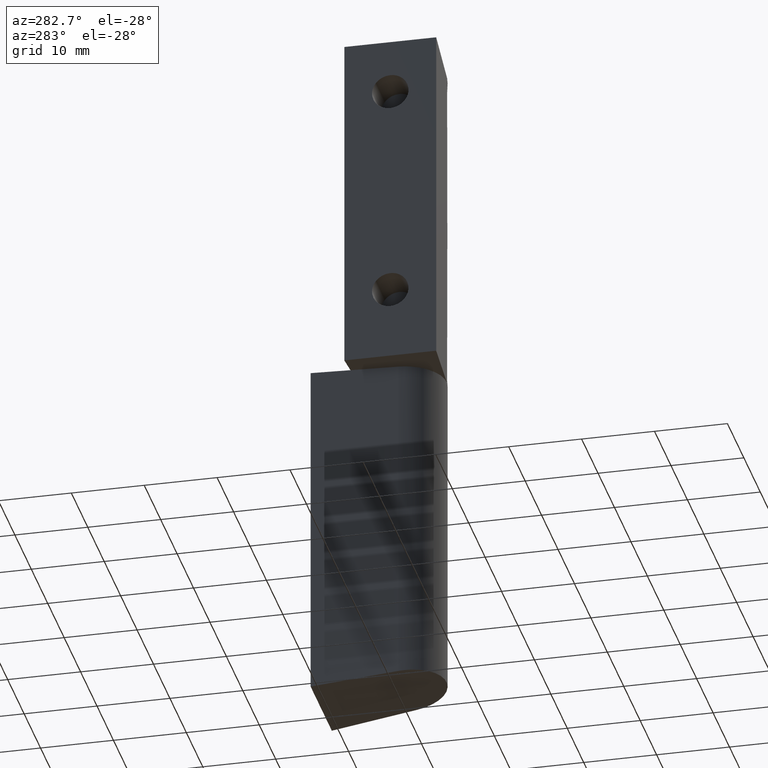
[diagram: clean part render]
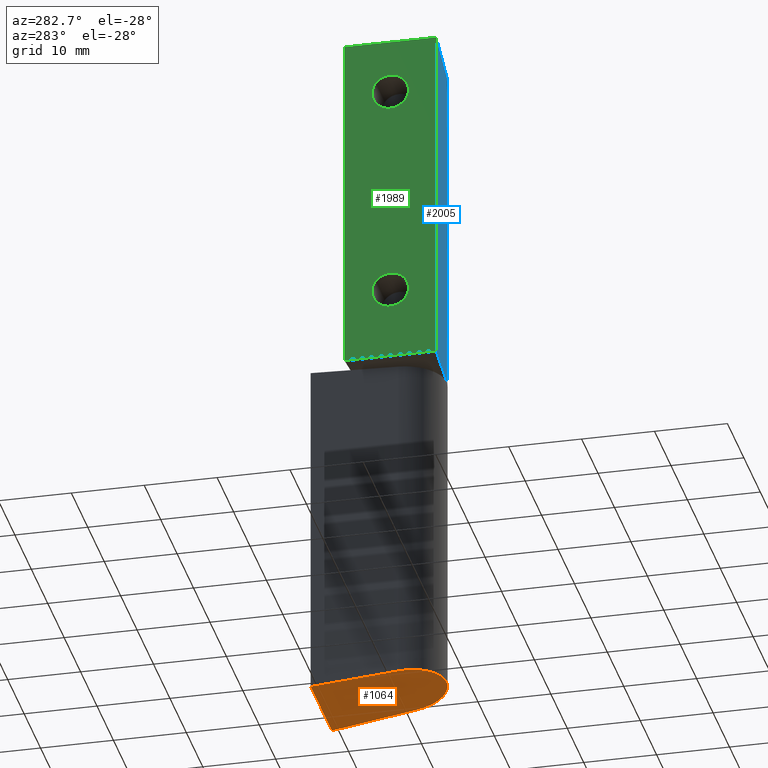
[diagram: same view with three faces highlighted in distinct colors, each labeled with its STEP entity id]
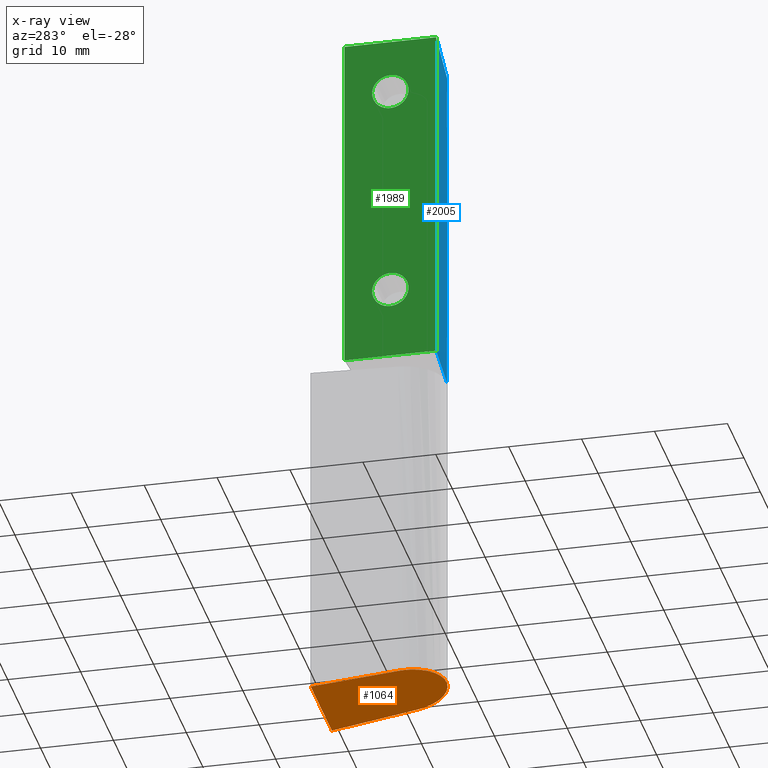
[diagram: x-ray of the same camera — body ghosted, the three highlighted faces saturated]
A machine part, auxiliary view with three faces highlighted in distinct colors.
The next image is the same camera in x-ray (body ghosted, the three faces saturated) — at least one of them is partly hidden behind the body in this view.
Their STEP definitions:

[orange] entity #1064 — the highlighted face is a freeform B-spline surface patch.
#1019=CARTESIAN_POINT('',(-7.094355311961397,12.359141038074650,-0.099900057192342));
#1020=CARTESIAN_POINT('',(-7.094355311961397,-6.559140762589450,2.099900152187726));
#1021=CARTESIAN_POINT('',(7.094355657966185,12.359141038074650,-0.099900057192342));
#1022=CARTESIAN_POINT('',(7.094355657966185,-6.559140762589450,2.099900152187726));
#1023=B_SPLINE_SURFACE_WITH_KNOTS('',1,1,((#1019,#1021),(#1020,#1022)),.UNSPECIFIED.,.F.,.F.,.U.,(2,2),(2,2),(0.0,19.045747747214520),(0.0,14.188710969927580),.UNSPECIFIED.);
#1024=CARTESIAN_POINT('',(6.450000306358669,11.500000546220720,0.0));
#1025=VERTEX_POINT('',#1024);
#1026=CARTESIAN_POINT('',(-6.450000306358859,11.500000546220599,0.0));
#1027=VERTEX_POINT('',#1026);
#1028=CARTESIAN_POINT('',(6.450000306358669,11.500000546220720,0.0));
#1029=CARTESIAN_POINT('',(-6.450000306358859,11.500000546220599,0.0));
#1030=QUASI_UNIFORM_CURVE('',1,(#1028,#1029),.UNSPECIFIED.,.F.,.U.);
#1031=EDGE_CURVE('',#1025,#1027,#1030,.T.);
#1032=ORIENTED_EDGE('',*,*,#1031,.F.);
#1033=CARTESIAN_POINT('',(5.688290843953990,-0.365171686983634,1.379671189907754));
#1034=VERTEX_POINT('',#1033);
#1035=CARTESIAN_POINT('',(5.688290843953990,-0.365171686983634,1.379671189907754));
#1036=CARTESIAN_POINT('',(6.450000306358669,11.500000546220720,0.0));
#1037=QUASI_UNIFORM_CURVE('',1,(#1035,#1036),.UNSPECIFIED.,.F.,.U.);
#1038=EDGE_CURVE('',#1034,#1025,#1037,.T.);
#1039=ORIENTED_EDGE('',*,*,#1038,.F.);
#1040=CARTESIAN_POINT('',(-5.688290843954590,-0.365171686983985,1.379671189907782));
#1041=VERTEX_POINT('',#1040);
#1042=CARTESIAN_POINT('',(5.688290843953990,-0.365171686983634,1.379671189907754));
#1043=CARTESIAN_POINT('',(5.345810403494418,-5.700000270738288,2.000000094995675));
#1044=CARTESIAN_POINT('',(-3.155577E-012,-5.700000270735608,2.000000094995364));
#1045=CARTESIAN_POINT('',(-5.345810403500728,-5.700000270732930,2.000000094995051));
#1046=CARTESIAN_POINT('',(-5.688290843954590,-0.365171686983985,1.379671189907782));
#1054=(BOUNDED_CURVE()B_SPLINE_CURVE(2,(#1042,#1043,#1044,#1045,#1046),.UNSPECIFIED.,.F.,.U.)B_SPLINE_CURVE_WITH_KNOTS((3,2,3),(0.0,0.500000000000000,1.0),.UNSPECIFIED.)CURVE()GEOMETRIC_REPRESENTATION_ITEM()RATIONAL_B_SPLINE_CURVE((1.0,0.729405650238358,1.0,0.729405650238358,1.0))REPRESENTATION_ITEM(''));
#1055=EDGE_CURVE('',#1034,#1041,#1054,.T.);
#1056=ORIENTED_EDGE('',*,*,#1055,.T.);
#1057=CARTESIAN_POINT('',(-6.450000306358859,11.500000546220599,0.0));
#1058=CARTESIAN_POINT('',(-5.688290843954590,-0.365171686983985,1.379671189907782));
#1059=QUASI_UNIFORM_CURVE('',1,(#1057,#1058),.UNSPECIFIED.,.F.,.U.);
#1060=EDGE_CURVE('',#1027,#1041,#1059,.T.);
#1061=ORIENTED_EDGE('',*,*,#1060,.F.);
#1062=EDGE_LOOP('',(#1032,#1039,#1056,#1061));
#1063=FACE_OUTER_BOUND('',#1062,.T.);
#1064=ADVANCED_FACE('',(#1063),#1023,.F.);

[blue] entity #2005 — the highlighted face is a freeform B-spline surface patch.
#1842=CARTESIAN_POINT('',(0.371515839193036,-5.687880015226591,93.724968285499799));
#1843=VERTEX_POINT('',#1842);
#1868=CARTESIAN_POINT('',(-9.000000427477248,-6.300000299233940,95.000004512257405));
#1869=VERTEX_POINT('',#1868);
#1875=CARTESIAN_POINT('',(0.371515839193036,-5.687880015226591,93.724968285499799));
#1876=CARTESIAN_POINT('',(-9.000000427477248,-6.300000299233940,95.000004512257405));
#1877=QUASI_UNIFORM_CURVE('',1,(#1875,#1876),.UNSPECIFIED.,.F.,.U.);
#1878=EDGE_CURVE('',#1843,#1869,#1877,.T.);
#1909=CARTESIAN_POINT('',(0.371515839193036,-5.687880015226591,47.500002256128802));
#1910=VERTEX_POINT('',#1909);
#1911=CARTESIAN_POINT('',(0.371515839193036,-5.687880015226591,47.500002256128802));
#1912=CARTESIAN_POINT('',(0.371515839193036,-5.687880015226591,93.724968285499799));
#1913=QUASI_UNIFORM_CURVE('',1,(#1911,#1912),.UNSPECIFIED.,.F.,.U.);
#1914=EDGE_CURVE('',#1910,#1843,#1913,.T.);
#1963=CARTESIAN_POINT('',(-9.000000427477300,-6.300000299233999,47.500002256128802));
#1964=VERTEX_POINT('',#1963);
#1970=CARTESIAN_POINT('',(-9.000000427477300,-6.300000299233999,47.500002256128802));
#1971=CARTESIAN_POINT('',(-9.000000427477248,-6.300000299233940,95.000004512257405));
#1972=QUASI_UNIFORM_CURVE('',1,(#1970,#1971),.UNSPECIFIED.,.F.,.U.);
#1973=EDGE_CURVE('',#1964,#1869,#1972,.T.);
#1990=CARTESIAN_POINT('',(0.839623025067763,-5.657304610413728,45.127378403484123));
#1991=CARTESIAN_POINT('',(-9.468107194412603,-6.330575676682939,45.127378403484130));
#1992=CARTESIAN_POINT('',(0.839623025067763,-5.657304610413728,97.372634310465671));
#1993=CARTESIAN_POINT('',(-9.468107194412603,-6.330575676682939,97.372634310465671));
#1994=B_SPLINE_SURFACE_WITH_KNOTS('',1,1,((#1990,#1992),(#1991,#1993)),.UNSPECIFIED.,.F.,.F.,.U.,(2,2),(2,2),(0.0,10.329694874790061),(0.0,52.245255906981548),.UNSPECIFIED.);
#1995=ORIENTED_EDGE('',*,*,#1914,.T.);
#1996=ORIENTED_EDGE('',*,*,#1878,.T.);
#1997=ORIENTED_EDGE('',*,*,#1973,.F.);
#1998=CARTESIAN_POINT('',(0.371515839193036,-5.687880015226591,47.500002256128802));
#1999=CARTESIAN_POINT('',(-9.000000427477300,-6.300000299233999,47.500002256128802));
#2000=QUASI_UNIFORM_CURVE('',1,(#1998,#1999),.UNSPECIFIED.,.F.,.U.);
#2001=EDGE_CURVE('',#1910,#1964,#2000,.T.);
#2002=ORIENTED_EDGE('',*,*,#2001,.F.);
#2003=EDGE_LOOP('',(#1995,#1996,#1997,#2002));
#2004=FACE_OUTER_BOUND('',#2003,.T.);
#2005=ADVANCED_FACE('',(#2004),#1994,.F.);

[green] entity #1989 — the highlighted face is a freeform B-spline surface patch.
#1470=CARTESIAN_POINT('',(-9.000000427477279,-2.482523933808150,87.204918555246650));
#1471=VERTEX_POINT('',#1470);
#1477=CARTESIAN_POINT('',(-9.000000427477279,0.0,90.000004274770532));
#1478=VERTEX_POINT('',#1477);
#1479=CARTESIAN_POINT('',(-9.000000427477279,-2.482523933808150,87.204918555246650));
#1480=CARTESIAN_POINT('',(-9.000000427477279,-2.500000118743626,87.351943849740792));
#1481=CARTESIAN_POINT('',(-9.000000427477279,-2.500000118743625,87.500004156026904));
#1482=CARTESIAN_POINT('',(-9.000000427477279,-2.500000118743625,90.000004274770532));
#1483=CARTESIAN_POINT('',(-9.000000427477279,0.0,90.000004274770532));
#1491=(BOUNDED_CURVE()B_SPLINE_CURVE(2,(#1479,#1480,#1481,#1482,#1483),.UNSPECIFIED.,.F.,.U.)B_SPLINE_CURVE_WITH_KNOTS((3,2,3),(0.229562473498959,0.250000000000000,0.500000000000000),.UNSPECIFIED.)CURVE()GEOMETRIC_REPRESENTATION_ITEM()RATIONAL_B_SPLINE_CURVE((0.956026754155183,0.976055948314100,1.0,0.707106781186547,1.0))REPRESENTATION_ITEM(''));
#1492=EDGE_CURVE('',#1471,#1478,#1491,.T.);
#1494=CARTESIAN_POINT('',(-9.000000427477279,2.495337114558163,87.652625512418069));
#1495=VERTEX_POINT('',#1494);
#1496=CARTESIAN_POINT('',(-9.000000427477279,0.0,90.000004274770532));
#1497=CARTESIAN_POINT('',(-9.000000427477279,2.351765278391312,90.000004274770532));
#1498=CARTESIAN_POINT('',(-9.000000427477279,2.495337114558163,87.652625512418069));
#1506=(BOUNDED_CURVE()B_SPLINE_CURVE(2,(#1496,#1497,#1498),.UNSPECIFIED.,.F.,.U.)B_SPLINE_CURVE_WITH_KNOTS((3,3),(0.500000000000000,0.739332962199803),.UNSPECIFIED.)CURVE()GEOMETRIC_REPRESENTATION_ITEM()RATIONAL_B_SPLINE_CURVE((1.0,0.719603993332565,0.976072041582834))REPRESENTATION_ITEM(''));
#1507=EDGE_CURVE('',#1478,#1495,#1506,.T.);
#1581=CARTESIAN_POINT('',(-9.000000427477279,0.0,85.000004037283276));
#1582=VERTEX_POINT('',#1581);
#1583=CARTESIAN_POINT('',(-9.000000427477279,2.495337114558163,87.652625512418069));
#1584=CARTESIAN_POINT('',(-9.000000427477280,2.500000118743625,87.576386068207071));
#1585=CARTESIAN_POINT('',(-9.000000427477279,2.500000118743625,87.500004156026904));
#1586=CARTESIAN_POINT('',(-9.000000427477279,2.500000118743625,85.000004037283290));
#1587=CARTESIAN_POINT('',(-9.000000427477279,0.0,85.000004037283276));
#1595=(BOUNDED_CURVE()B_SPLINE_CURVE(2,(#1583,#1584,#1585,#1586,#1587),.UNSPECIFIED.,.F.,.U.)B_SPLINE_CURVE_WITH_KNOTS((3,2,3),(0.739332962199802,0.750000000000000,1.0),.UNSPECIFIED.)CURVE()GEOMETRIC_REPRESENTATION_ITEM()RATIONAL_B_SPLINE_CURVE((0.976072041582832,0.987502787853981,1.0,0.707106781186547,1.0))REPRESENTATION_ITEM(''));
#1596=EDGE_CURVE('',#1495,#1582,#1595,.T.);
#1598=CARTESIAN_POINT('',(-9.000000427477279,0.0,85.000004037283276));
#1599=CARTESIAN_POINT('',(-9.000000427477279,-2.220436420122726,85.000004037283276));
#1600=CARTESIAN_POINT('',(-9.000000427477279,-2.482523933808150,87.204918555246650));
#1608=(BOUNDED_CURVE()B_SPLINE_CURVE(2,(#1598,#1599,#1600),.UNSPECIFIED.,.F.,.U.)B_SPLINE_CURVE_WITH_KNOTS((3,3),(0.0,0.229562473498959),.UNSPECIFIED.)CURVE()GEOMETRIC_REPRESENTATION_ITEM()RATIONAL_B_SPLINE_CURVE((1.0,0.731050832872448,0.956026754155183))REPRESENTATION_ITEM(''));
#1609=EDGE_CURVE('',#1582,#1471,#1608,.T.);
#1656=CARTESIAN_POINT('',(-9.000000427477279,-2.482523933808151,57.204918555246650));
#1657=VERTEX_POINT('',#1656);
#1663=CARTESIAN_POINT('',(-9.000000427477279,0.0,60.000004274770532));
#1664=VERTEX_POINT('',#1663);
#1665=CARTESIAN_POINT('',(-9.000000427477279,-2.482523933808151,57.204918555246650));
#1666=CARTESIAN_POINT('',(-9.000000427477277,-2.500000118743625,57.351943849740799));
#1667=CARTESIAN_POINT('',(-9.000000427477279,-2.500000118743625,57.500004156026897));
#1668=CARTESIAN_POINT('',(-9.000000427477279,-2.500000118743625,60.000004274770525));
#1669=CARTESIAN_POINT('',(-9.000000427477279,0.0,60.000004274770532));
#1677=(BOUNDED_CURVE()B_SPLINE_CURVE(2,(#1665,#1666,#1667,#1668,#1669),.UNSPECIFIED.,.F.,.U.)B_SPLINE_CURVE_WITH_KNOTS((3,2,3),(0.229562473498960,0.250000000000000,0.500000000000000),.UNSPECIFIED.)CURVE()GEOMETRIC_REPRESENTATION_ITEM()RATIONAL_B_SPLINE_CURVE((0.956026754155185,0.976055948314101,1.0,0.707106781186547,1.0))REPRESENTATION_ITEM(''));
#1678=EDGE_CURVE('',#1657,#1664,#1677,.T.);
#1680=CARTESIAN_POINT('',(-9.000000427477279,2.495337114558164,57.652625512418062));
#1681=VERTEX_POINT('',#1680);
#1682=CARTESIAN_POINT('',(-9.000000427477279,0.0,60.000004274770532));
#1683=CARTESIAN_POINT('',(-9.000000427477279,2.351765278391312,60.000004274770518));
#1684=CARTESIAN_POINT('',(-9.000000427477279,2.495337114558164,57.652625512418055));
#1692=(BOUNDED_CURVE()B_SPLINE_CURVE(2,(#1682,#1683,#1684),.UNSPECIFIED.,.F.,.U.)B_SPLINE_CURVE_WITH_KNOTS((3,3),(0.500000000000000,0.739332962199803),.UNSPECIFIED.)CURVE()GEOMETRIC_REPRESENTATION_ITEM()RATIONAL_B_SPLINE_CURVE((1.0,0.719603993332565,0.976072041582834))REPRESENTATION_ITEM(''));
#1693=EDGE_CURVE('',#1664,#1681,#1692,.T.);
#1767=CARTESIAN_POINT('',(-9.000000427477279,0.0,55.000004037283269));
#1768=VERTEX_POINT('',#1767);
#1769=CARTESIAN_POINT('',(-9.000000427477279,2.495337114558164,57.652625512418055));
#1770=CARTESIAN_POINT('',(-9.000000427477280,2.500000118743626,57.576386068207057));
#1771=CARTESIAN_POINT('',(-9.000000427477279,2.500000118743625,57.500004156026897));
#1772=CARTESIAN_POINT('',(-9.000000427477279,2.500000118743625,55.000004037283269));
#1773=CARTESIAN_POINT('',(-9.000000427477279,0.0,55.000004037283269));
#1781=(BOUNDED_CURVE()B_SPLINE_CURVE(2,(#1769,#1770,#1771,#1772,#1773),.UNSPECIFIED.,.F.,.U.)B_SPLINE_CURVE_WITH_KNOTS((3,2,3),(0.739332962199804,0.750000000000000,1.0),.UNSPECIFIED.)CURVE()GEOMETRIC_REPRESENTATION_ITEM()RATIONAL_B_SPLINE_CURVE((0.976072041582835,0.987502787853983,1.0,0.707106781186547,1.0))REPRESENTATION_ITEM(''));
#1782=EDGE_CURVE('',#1681,#1768,#1781,.T.);
#1784=CARTESIAN_POINT('',(-9.000000427477279,0.0,55.000004037283269));
#1785=CARTESIAN_POINT('',(-9.000000427477277,-2.220436420122740,55.000004037283261));
#1786=CARTESIAN_POINT('',(-9.000000427477279,-2.482523933808152,57.204918555246657));
#1794=(BOUNDED_CURVE()B_SPLINE_CURVE(2,(#1784,#1785,#1786),.UNSPECIFIED.,.F.,.U.)B_SPLINE_CURVE_WITH_KNOTS((3,3),(0.0,0.229562473498960),.UNSPECIFIED.)CURVE()GEOMETRIC_REPRESENTATION_ITEM()RATIONAL_B_SPLINE_CURVE((1.0,0.731050832872446,0.956026754155185))REPRESENTATION_ITEM(''));
#1795=EDGE_CURVE('',#1768,#1657,#1794,.T.);
#1861=CARTESIAN_POINT('',(-9.000000427477300,6.300000299233999,95.000004512257405));
#1862=VERTEX_POINT('',#1861);
#1868=CARTESIAN_POINT('',(-9.000000427477248,-6.300000299233940,95.000004512257405));
#1869=VERTEX_POINT('',#1868);
#1870=CARTESIAN_POINT('',(-9.000000427477248,-6.300000299233940,95.000004512257405));
#1871=CARTESIAN_POINT('',(-9.000000427477300,6.300000299233999,95.000004512257405));
#1872=QUASI_UNIFORM_CURVE('',1,(#1870,#1871),.UNSPECIFIED.,.F.,.U.);
#1873=EDGE_CURVE('',#1869,#1862,#1872,.T.);
#1939=CARTESIAN_POINT('',(-9.000000427477300,6.300000299233999,47.500002256128802));
#1940=VERTEX_POINT('',#1939);
#1941=CARTESIAN_POINT('',(-9.000000427477300,6.300000299233999,47.500002256128802));
#1942=CARTESIAN_POINT('',(-9.000000427477300,6.300000299233999,95.000004512257405));
#1943=QUASI_UNIFORM_CURVE('',1,(#1941,#1942),.UNSPECIFIED.,.F.,.U.);
#1944=EDGE_CURVE('',#1940,#1862,#1943,.T.);
#1956=CARTESIAN_POINT('',(-9.000000427477300,-6.929370186426438,97.372632930351742));
#1957=CARTESIAN_POINT('',(-9.000000427477300,-6.929370186426438,45.127379358914958));
#1958=CARTESIAN_POINT('',(-9.000000427477300,6.929370637037575,97.372632930351742));
#1959=CARTESIAN_POINT('',(-9.000000427477300,6.929370637037575,45.127379358914951));
#1960=B_SPLINE_SURFACE_WITH_KNOTS('',1,1,((#1956,#1958),(#1957,#1959)),.UNSPECIFIED.,.F.,.F.,.U.,(2,2),(2,2),(0.0,52.245253571436791),(0.0,13.858740823464011),.UNSPECIFIED.);
#1961=ORIENTED_EDGE('',*,*,#1873,.T.);
#1962=ORIENTED_EDGE('',*,*,#1944,.F.);
#1963=CARTESIAN_POINT('',(-9.000000427477300,-6.300000299233999,47.500002256128802));
#1964=VERTEX_POINT('',#1963);
#1965=CARTESIAN_POINT('',(-9.000000427477300,-6.300000299233999,47.500002256128802));
#1966=CARTESIAN_POINT('',(-9.000000427477300,6.300000299233999,47.500002256128802));
#1967=QUASI_UNIFORM_CURVE('',1,(#1965,#1966),.UNSPECIFIED.,.F.,.U.);
#1968=EDGE_CURVE('',#1964,#1940,#1967,.T.);
#1969=ORIENTED_EDGE('',*,*,#1968,.F.);
#1970=CARTESIAN_POINT('',(-9.000000427477300,-6.300000299233999,47.500002256128802));
#1971=CARTESIAN_POINT('',(-9.000000427477248,-6.300000299233940,95.000004512257405));
#1972=QUASI_UNIFORM_CURVE('',1,(#1970,#1971),.UNSPECIFIED.,.F.,.U.);
#1973=EDGE_CURVE('',#1964,#1869,#1972,.T.);
#1974=ORIENTED_EDGE('',*,*,#1973,.T.);
#1975=EDGE_LOOP('',(#1961,#1962,#1969,#1974));
#1976=FACE_OUTER_BOUND('',#1975,.T.);
#1977=ORIENTED_EDGE('',*,*,#1693,.F.);
#1978=ORIENTED_EDGE('',*,*,#1678,.F.);
#1979=ORIENTED_EDGE('',*,*,#1795,.F.);
#1980=ORIENTED_EDGE('',*,*,#1782,.F.);
#1981=EDGE_LOOP('',(#1977,#1978,#1979,#1980));
#1982=FACE_BOUND('',#1981,.T.);
#1983=ORIENTED_EDGE('',*,*,#1507,.F.);
#1984=ORIENTED_EDGE('',*,*,#1492,.F.);
#1985=ORIENTED_EDGE('',*,*,#1609,.F.);
#1986=ORIENTED_EDGE('',*,*,#1596,.F.);
#1987=EDGE_LOOP('',(#1983,#1984,#1985,#1986));
#1988=FACE_BOUND('',#1987,.T.);
#1989=ADVANCED_FACE('',(#1976,#1982,#1988),#1960,.F.);